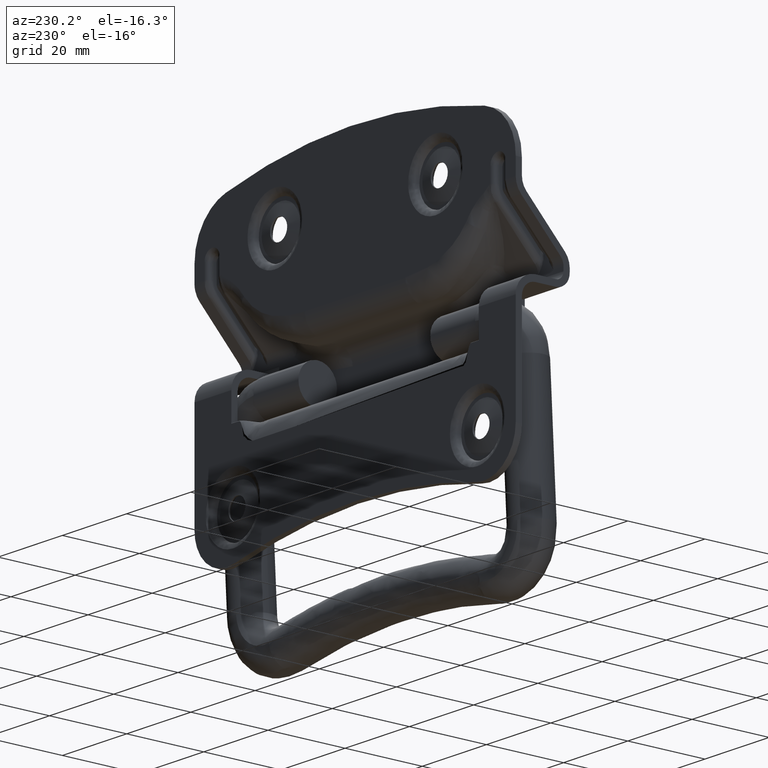
[diagram: clean part render]
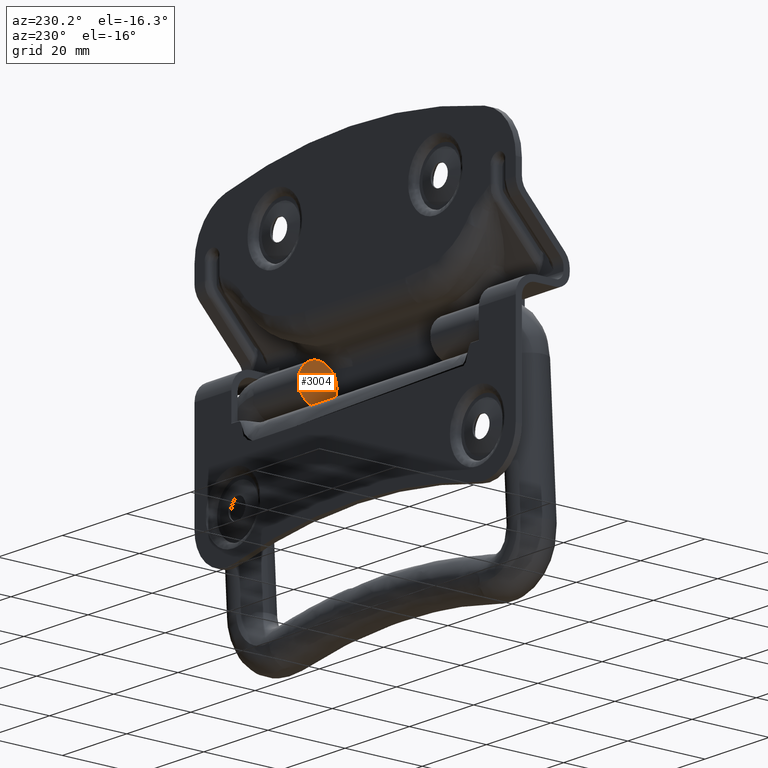
[diagram: same view with one face highlighted and labeled with its STEP entity id]
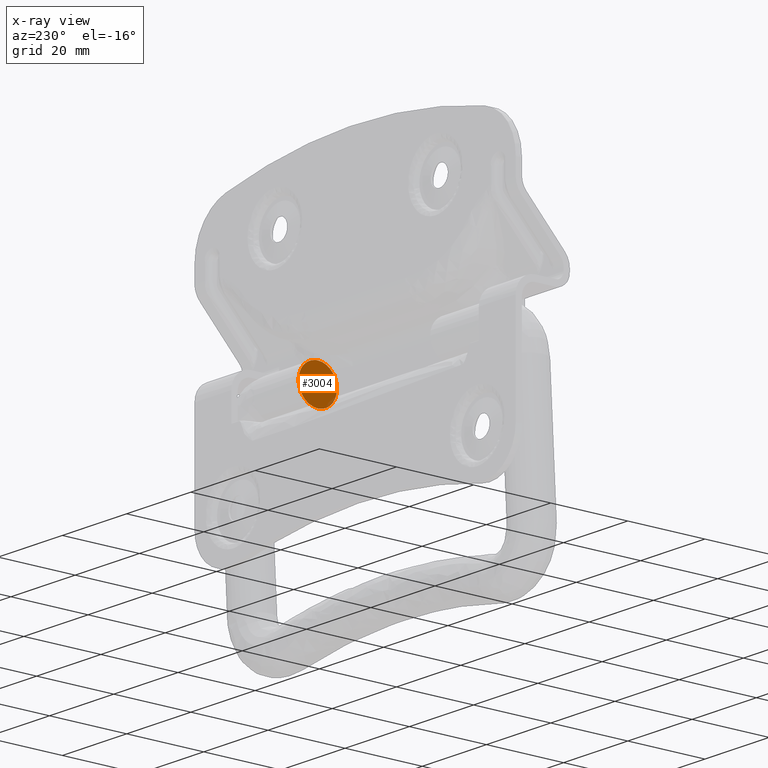
[diagram: x-ray of the same camera — body ghosted, the highlighted face saturated]
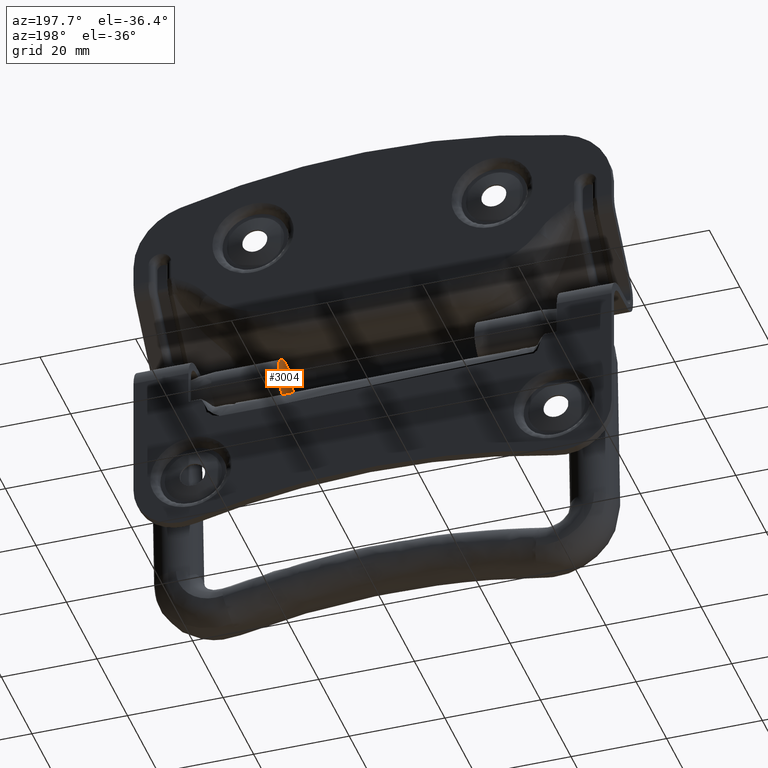
[diagram: same view with one face highlighted and labeled with its STEP entity id]
A machine part, auxiliary view. The second image highlights one B-rep face of the part: STEP entity #3004.
The next image is the same camera in x-ray: the body ghosted, the highlighted face saturated — about 2% of this face is hidden behind the body in this view.
A second angle (auxiliary view) of the same face is appended — the face is thin or edge-on in the first view.
In plain terms, the highlighted face is a freeform B-spline surface patch.
Its self-contained STEP definition (entity closure, byte-faithful):
#713=CARTESIAN_POINT('',(20.499999999998401,0.625900850793219,4.960670165149141));
#714=VERTEX_POINT('',#713);
#715=CARTESIAN_POINT('',(20.499999999998401,0.0,5.0));
#716=VERTEX_POINT('',#715);
#717=CARTESIAN_POINT('',(20.499999999998401,0.625900850793219,4.960670165149141));
#718=CARTESIAN_POINT('',(20.499999999998401,0.418364754704130,4.986858529622139));
#719=CARTESIAN_POINT('',(20.499999999998401,0.209183362481967,5.000005630982718));
#720=CARTESIAN_POINT('',(20.499999999998401,0.0,5.0));
#721=B_SPLINE_CURVE_WITH_KNOTS('',3,(#717,#718,#719,#720),.UNSPECIFIED.,.F.,.U.,(4,4),(5.939598E-010,0.627553571294129),.UNSPECIFIED.);
#722=EDGE_CURVE('',#714,#716,#721,.T.);
#724=CARTESIAN_POINT('',(20.499999999998401,-4.999999999999647,-0.000001877401741));
#725=VERTEX_POINT('',#724);
#726=CARTESIAN_POINT('',(20.499999999998401,0.0,5.0));
#727=CARTESIAN_POINT('',(20.499999999998401,-0.429527421010408,5.000135925639673));
#728=CARTESIAN_POINT('',(20.499999999998419,-1.145310786484602,4.907146872007232));
#729=CARTESIAN_POINT('',(20.499999999998391,-2.189094912341179,4.533719788271802));
#730=CARTESIAN_POINT('',(20.499999999998380,-3.121778059631477,3.966942920432278));
#731=CARTESIAN_POINT('',(20.499999999998561,-3.879481841353931,3.209196983810862));
#732=CARTESIAN_POINT('',(20.499999999998131,-4.444152356606448,2.352659682436114));
#733=CARTESIAN_POINT('',(20.499999999998611,-4.875482453531761,1.329351509677789));
#734=CARTESIAN_POINT('',(20.499999999998359,-5.000213826268863,0.490893177277100));
#735=CARTESIAN_POINT('',(20.499999999998401,-4.999999999999647,-0.000001877401741));
#736=B_SPLINE_CURVE_WITH_KNOTS('',3,(#726,#727,#728,#729,#730,#731,#732,#733,#734,#735),.UNSPECIFIED.,.F.,.U.,(4,1,1,1,1,1,1,4),(0.000000135029940,1.288547655618329,2.147590194461417,3.313450025686842,4.540582984401760,5.338273878665762,6.381403777590165,7.854031972525724),.UNSPECIFIED.);
#737=EDGE_CURVE('',#716,#725,#736,.T.);
#739=CARTESIAN_POINT('',(20.499999999998401,0.0,-5.0));
#740=VERTEX_POINT('',#739);
#741=CARTESIAN_POINT('',(20.499999999998401,-4.999999999999647,-0.000001877401741));
#742=CARTESIAN_POINT('',(20.499999999998369,-5.000032986781837,-0.327249460696944));
#743=CARTESIAN_POINT('',(20.499999999998451,-4.929494206072085,-1.043099598820403));
#744=CARTESIAN_POINT('',(20.499999999998419,-4.555649056265464,-2.199136779312839));
#745=CARTESIAN_POINT('',(20.499999999998352,-3.867886478063792,-3.256323808290857));
#746=CARTESIAN_POINT('',(20.499999999998462,-3.074854275991601,-3.974772562209096));
#747=CARTESIAN_POINT('',(20.499999999998330,-2.295814736370591,-4.468129876957326));
#748=CARTESIAN_POINT('',(20.499999999998359,-1.329347594683904,-4.875461576849794));
#749=CARTESIAN_POINT('',(20.499999999998561,-0.490899000069907,-5.000230470459784));
#750=CARTESIAN_POINT('',(20.499999999998401,0.0,-5.0));
#751=B_SPLINE_CURVE_WITH_KNOTS('',3,(#741,#742,#743,#744,#745,#746,#747,#748,#749,#750),.UNSPECIFIED.,.F.,.U.,(4,1,1,1,1,1,1,4),(0.000000135681665,0.981750322546922,2.147589616295362,3.620241985372001,4.724670245738713,5.338272439523175,6.381402057427203,7.854029856243150),.UNSPECIFIED.);
#752=EDGE_CURVE('',#725,#740,#751,.T.);
#754=CARTESIAN_POINT('',(20.499999999998408,4.999999999999648,0.000001877401737));
#755=VERTEX_POINT('',#754);
#756=CARTESIAN_POINT('',(20.499999999998401,0.0,-5.0));
#757=CARTESIAN_POINT('',(20.499999999998408,0.409067097279845,-5.000097128588673));
#758=CARTESIAN_POINT('',(20.499999999998401,1.043054788875207,-4.921738721678897));
#759=CARTESIAN_POINT('',(20.499999999998408,1.940250369887307,-4.631409637172276));
#760=CARTESIAN_POINT('',(20.499999999998408,2.799931701384188,-4.192172693077835));
#761=CARTESIAN_POINT('',(20.499999999998192,3.577126641168326,-3.546332449352295));
#762=CARTESIAN_POINT('',(20.499999999999002,4.289597408263729,-2.644819990218357));
#763=CARTESIAN_POINT('',(20.499999999997321,4.841896375252067,-1.513384137670719));
#764=CARTESIAN_POINT('',(20.499999999999009,5.000287444085874,-0.531811463020415));
#765=CARTESIAN_POINT('',(20.499999999998408,4.999999999999648,0.000001877401737));
#766=B_SPLINE_CURVE_WITH_KNOTS('',3,(#756,#757,#758,#759,#760,#761,#762,#763,#764,#765),.UNSPECIFIED.,.F.,.U.,(4,1,1,1,1,1,1,4),(0.000000135030872,1.227175045386765,1.902147779435863,2.822562947100076,4.111081936280281,4.908761583228941,6.258689205917769,7.854031972525722),.UNSPECIFIED.);
#767=EDGE_CURVE('',#740,#755,#766,.T.);
#769=CARTESIAN_POINT('',(20.499999999998401,3.626872194210343,3.441773201989868));
#770=VERTEX_POINT('',#769);
#771=CARTESIAN_POINT('',(20.499999999998408,4.999999999999648,0.000001877401737));
#772=CARTESIAN_POINT('',(20.499999999998451,5.000114256996561,0.434980722352750));
#773=CARTESIAN_POINT('',(20.499999999998320,4.903915365343885,1.166444833642658));
#774=CARTESIAN_POINT('',(20.499999999998490,4.468398508723211,2.359882648592089));
#775=CARTESIAN_POINT('',(20.499999999998341,3.994569754930966,3.054713374648179));
#776=CARTESIAN_POINT('',(20.499999999998401,3.626872194210343,3.441773201989868));
#777=B_SPLINE_CURVE_WITH_KNOTS('',3,(#771,#772,#773,#774,#775,#776),.UNSPECIFIED.,.F.,.U.,(4,1,1,4),(0.000000033595440,1.304915392893849,2.194625651284855,3.796111682258853),.UNSPECIFIED.);
#778=EDGE_CURVE('',#755,#770,#777,.T.);
#875=CARTESIAN_POINT('',(20.499999999998401,3.626872194210343,3.441773201989868));
#876=CARTESIAN_POINT('',(20.499999999998391,3.307238051155157,3.778890874505212));
#877=CARTESIAN_POINT('',(20.499999999998469,2.756550205000853,4.216729558986393));
#878=CARTESIAN_POINT('',(20.499999999998380,1.731086682347758,4.728888139426015));
#879=CARTESIAN_POINT('',(20.499999999998490,1.069086828549339,4.904907477128083));
#880=CARTESIAN_POINT('',(20.499999999998401,0.625900850793219,4.960670165149141));
#881=B_SPLINE_CURVE_WITH_KNOTS('',3,(#875,#876,#877,#878,#879,#880),.UNSPECIFIED.,.F.,.U.,(4,1,1,4),(0.000000022889059,1.393595124071221,2.090373221821547,3.430359973113673),.UNSPECIFIED.);
#882=EDGE_CURVE('',#770,#714,#881,.T.);
#2991=CARTESIAN_POINT('',(20.499999999998401,-5.499499980617672,-5.499499980618060));
#2992=CARTESIAN_POINT('',(20.499999999998401,-5.499499980617673,5.499500248838961));
#2993=CARTESIAN_POINT('',(20.499999999998401,5.499500248838574,-5.499499980618060));
#2994=CARTESIAN_POINT('',(20.499999999998401,5.499500248838574,5.499500248838961));
#2995=B_SPLINE_SURFACE_WITH_KNOTS('',1,1,((#2991,#2993),(#2992,#2994)),.UNSPECIFIED.,.F.,.F.,.U.,(2,2),(2,2),(0.0,10.999000229457019),(0.0,10.999000229456250),.UNSPECIFIED.);
#2996=ORIENTED_EDGE('',*,*,#722,.F.);
#2997=ORIENTED_EDGE('',*,*,#882,.F.);
#2998=ORIENTED_EDGE('',*,*,#778,.F.);
#2999=ORIENTED_EDGE('',*,*,#767,.F.);
#3000=ORIENTED_EDGE('',*,*,#752,.F.);
#3001=ORIENTED_EDGE('',*,*,#737,.F.);
#3002=EDGE_LOOP('',(#2996,#2997,#2998,#2999,#3000,#3001));
#3003=FACE_OUTER_BOUND('',#3002,.T.);
#3004=ADVANCED_FACE('',(#3003),#2995,.T.);